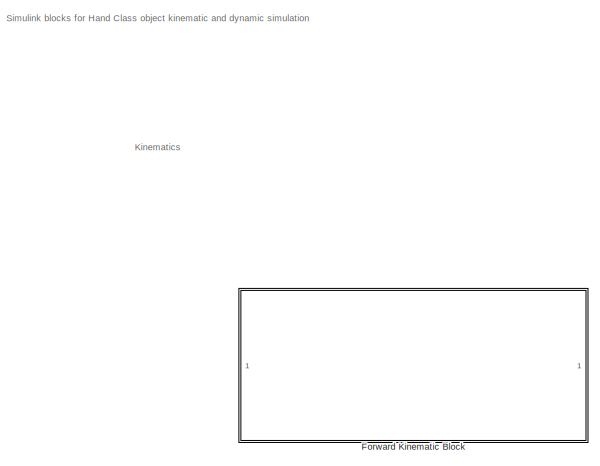
[diagram: root canvas - part 1/2, middle left region]
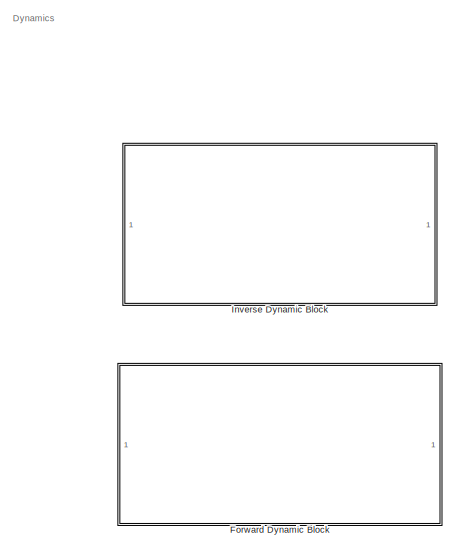
[diagram: root canvas - part 2/2, right side, full height]
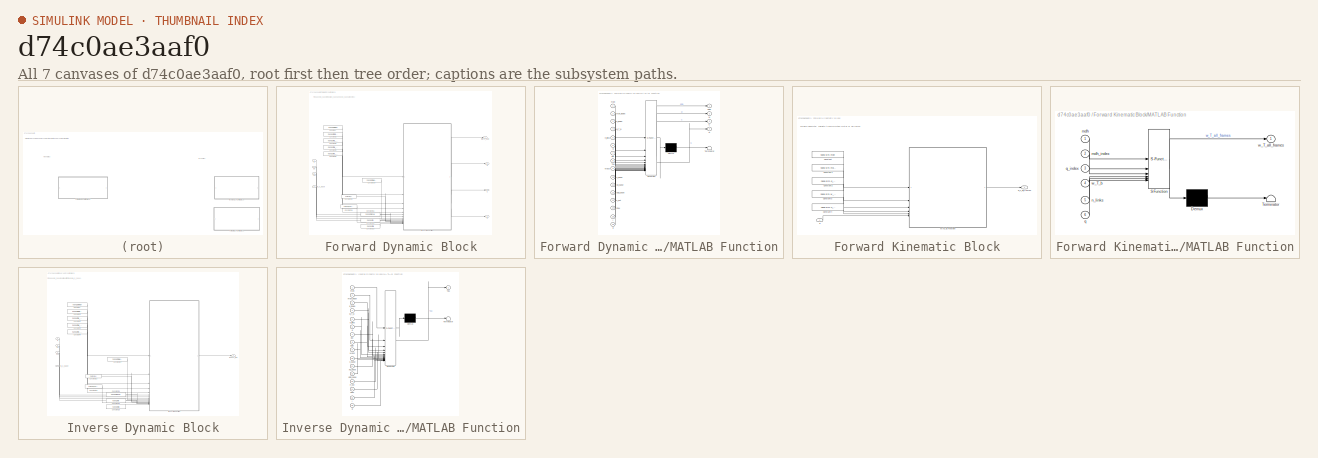
[diagram: thumbnail index - all 7 canvases of the model, root first then tree order]
MODEL slx_d74c0ae3aaf0
KIND library
CONFIG AbsTol = auto
CONFIG EnableMultiTasking = off
CONFIG FixedStep = auto
CONFIG MaxStep = auto
CONFIG MinStep = auto
CONFIG RelTol = 1e-3
CONFIG SampleTimeConstraint = Unconstrained
CONFIG SolverName = VariableStepAuto
CONFIG StartTime = 0.0
CONFIG StopTime = 10.0
BLOCK [SubSystem] Forward Dynamic Block
BLOCK [Outport] Forward Dynamic Block/C
  Port = 3
BLOCK [Constant] Forward Dynamic Block/Constant
  Value = hand.sim.mdh
BLOCK [Constant] Forward Dynamic Block/Constant1
  Value = hand.sim.mdh_index
BLOCK [Constant] Forward Dynamic Block/Constant10
  Value = zeros(6,1)
  VectorParams1D = off
BLOCK [Constant] Forward Dynamic Block/Constant14
  Value = hand.sim.Mass
  VectorParams1D = off
BLOCK [Constant] Forward Dynamic Block/Constant15
  Value = hand.sim.I
BLOCK [Constant] Forward Dynamic Block/Constant16
  Value = hand.sim.CoM
BLOCK [Constant] Forward Dynamic Block/Constant18
  Value = hand.sim.g
  VectorParams1D = off
BLOCK [Constant] Forward Dynamic Block/Constant19
  Value = zeros(6,hand.nf)
BLOCK [Constant] Forward Dynamic Block/Constant2
  Value = hand.sim.q_index
BLOCK [Constant] Forward Dynamic Block/Constant3
  Value = hand.sim.w_T_b
BLOCK [Constant] Forward Dynamic Block/Constant4
  Value = hand.sim.n_links
  VectorParams1D = off
BLOCK [Outport] Forward Dynamic Block/G
  Port = 4
BLOCK [Outport] Forward Dynamic Block/M
  Port = 2
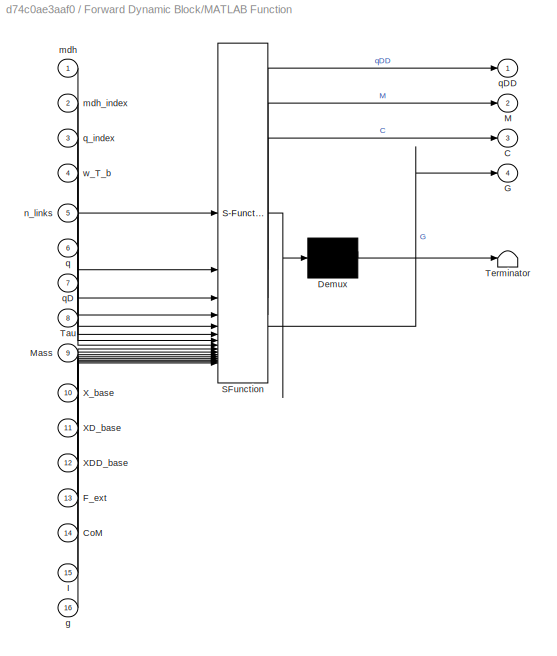
BLOCK [SubSystem] Forward Dynamic Block/MATLAB Function
  ErrorFcn = Stateflow.Translate.translate
  LibrarySourceBlock = simulink/User-Defined\nFunctions/MATLAB Function
  PermitHierarchicalResolution = ExplicitOnly
  SFBlockType = MATLAB Function
  TreatAsAtomicUnit = on
BLOCK [Demux] Forward Dynamic Block/MATLAB Function/ Demux 
  Outputs = 1
BLOCK [S-Function] Forward Dynamic Block/MATLAB Function/ SFunction 
  EnableBusSupport = on
  FunctionName = sf_sfun
  PortCounts = [16 5]
  SFcnIsStateOwnerBlock = off
  SFunctionDeploymentMode = off
  Tag = Stateflow S-Function 3
BLOCK [Terminator] Forward Dynamic Block/MATLAB Function/ Terminator 
BLOCK [Outport] Forward Dynamic Block/MATLAB Function/C
  Port = 3
BLOCK [Inport] Forward Dynamic Block/MATLAB Function/CoM
  Port = 14
BLOCK [Inport] Forward Dynamic Block/MATLAB Function/F_ext
  Port = 13
BLOCK [Outport] Forward Dynamic Block/MATLAB Function/G
  Port = 4
BLOCK [Inport] Forward Dynamic Block/MATLAB Function/I
  Port = 15
BLOCK [Outport] Forward Dynamic Block/MATLAB Function/M
  Port = 2
BLOCK [Inport] Forward Dynamic Block/MATLAB Function/Mass
  Port = 9
BLOCK [Inport] Forward Dynamic Block/MATLAB Function/Tau
  Port = 8
BLOCK [Inport] Forward Dynamic Block/MATLAB Function/XDD_base
  Port = 12
BLOCK [Inport] Forward Dynamic Block/MATLAB Function/XD_base
  Port = 11
BLOCK [Inport] Forward Dynamic Block/MATLAB Function/X_base
  Port = 10
BLOCK [Inport] Forward Dynamic Block/MATLAB Function/g
  Port = 16
BLOCK [Inport] Forward Dynamic Block/MATLAB Function/mdh
BLOCK [Inport] Forward Dynamic Block/MATLAB Function/mdh_index
  Port = 2
BLOCK [Inport] Forward Dynamic Block/MATLAB Function/n_links
  Port = 5
BLOCK [Inport] Forward Dynamic Block/MATLAB Function/q
  Port = 6
BLOCK [Inport] Forward Dynamic Block/MATLAB Function/qD
  Port = 7
BLOCK [Outport] Forward Dynamic Block/MATLAB Function/qDD
BLOCK [Inport] Forward Dynamic Block/MATLAB Function/q_index
  Port = 3
BLOCK [Inport] Forward Dynamic Block/MATLAB Function/w_T_b
  Port = 4
BLOCK [Inport] Forward Dynamic Block/Tau
  Port = 3
BLOCK [Outport] Forward Dynamic Block/fordyn_qdd
BLOCK [Inport] Forward Dynamic Block/q
BLOCK [Inport] Forward Dynamic Block/qd
  Port = 2
BLOCK [Inport] Forward Dynamic Block/w_x_base
  Port = 4
BLOCK [SubSystem] Forward Kinematic Block
BLOCK [Constant] Forward Kinematic Block/Constant
  Value = hand.sim.mdh
BLOCK [Constant] Forward Kinematic Block/Constant1
  Value = hand.sim.mdh_index
BLOCK [Constant] Forward Kinematic Block/Constant2
  Value = hand.sim.q_index
BLOCK [Constant] Forward Kinematic Block/Constant3
  Value = hand.sim.w_T_b
BLOCK [Constant] Forward Kinematic Block/Constant4
  Value = hand.sim.n_links
  VectorParams1D = off
BLOCK [SubSystem] Forward Kinematic Block/MATLAB Function
  ErrorFcn = Stateflow.Translate.translate
  LibrarySourceBlock = simulink/User-Defined\nFunctions/MATLAB Function
  PermitHierarchicalResolution = ExplicitOnly
  SFBlockType = MATLAB Function
  TreatAsAtomicUnit = on
BLOCK [Demux] Forward Kinematic Block/MATLAB Function/ Demux 
  Outputs = 1
BLOCK [S-Function] Forward Kinematic Block/MATLAB Function/ SFunction 
  EnableBusSupport = off
  FunctionName = sf_sfun
  PortCounts = [6 2]
  SFcnIsStateOwnerBlock = off
  SFunctionDeploymentMode = off
  Tag = Stateflow S-Function 1
BLOCK [Terminator] Forward Kinematic Block/MATLAB Function/ Terminator 
BLOCK [Inport] Forward Kinematic Block/MATLAB Function/mdh
BLOCK [Inport] Forward Kinematic Block/MATLAB Function/mdh_index
  Port = 2
BLOCK [Inport] Forward Kinematic Block/MATLAB Function/n_links
  Port = 5
BLOCK [Inport] Forward Kinematic Block/MATLAB Function/q
  Port = 6
BLOCK [Inport] Forward Kinematic Block/MATLAB Function/q_index
  Port = 3
BLOCK [Outport] Forward Kinematic Block/MATLAB Function/w_T_all_frames
BLOCK [Inport] Forward Kinematic Block/MATLAB Function/w_T_b
  Port = 4
BLOCK [Inport] Forward Kinematic Block/q
BLOCK [Outport] Forward Kinematic Block/w_T_all_frames
BLOCK [SubSystem] Inverse Dynamic Block
BLOCK [Constant] Inverse Dynamic Block/Constant
  Value = hand.sim.mdh
BLOCK [Constant] Inverse Dynamic Block/Constant1
  Value = hand.sim.mdh_index
BLOCK [Constant] Inverse Dynamic Block/Constant10
  Value = zeros(6,1)
  VectorParams1D = off
BLOCK [Constant] Inverse Dynamic Block/Constant14
  Value = hand.sim.Mass
  VectorParams1D = off
BLOCK [Constant] Inverse Dynamic Block/Constant15
  Value = hand.sim.I
BLOCK [Constant] Inverse Dynamic Block/Constant16
  Value = hand.sim.CoM
BLOCK [Constant] Inverse Dynamic Block/Constant18
  Value = hand.sim.g
  VectorParams1D = off
BLOCK [Constant] Inverse Dynamic Block/Constant19
  Value = zeros(6,hand.nf)
BLOCK [Constant] Inverse Dynamic Block/Constant2
  Value = hand.sim.q_index
BLOCK [Constant] Inverse Dynamic Block/Constant3
  Value = hand.sim.w_T_b
BLOCK [Constant] Inverse Dynamic Block/Constant4
  Value = hand.sim.n_links
  VectorParams1D = off
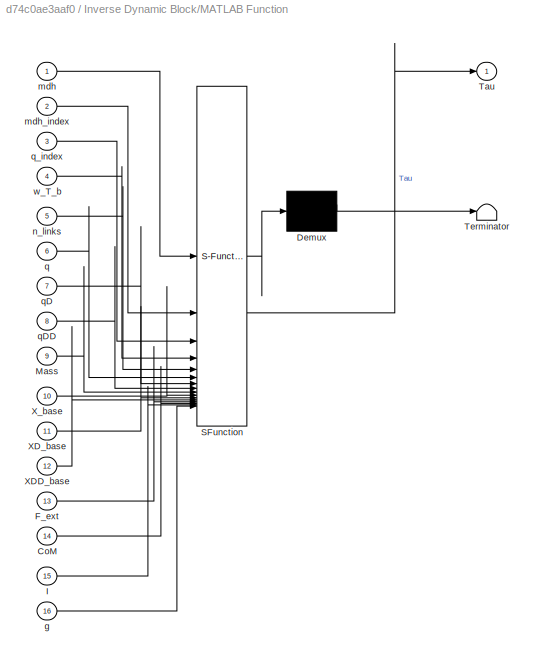
BLOCK [SubSystem] Inverse Dynamic Block/MATLAB Function
  ErrorFcn = Stateflow.Translate.translate
  LibrarySourceBlock = simulink/User-Defined\nFunctions/MATLAB Function
  PermitHierarchicalResolution = ExplicitOnly
  SFBlockType = MATLAB Function
  TreatAsAtomicUnit = on
BLOCK [Demux] Inverse Dynamic Block/MATLAB Function/ Demux 
  Outputs = 1
BLOCK [S-Function] Inverse Dynamic Block/MATLAB Function/ SFunction 
  EnableBusSupport = on
  FunctionName = sf_sfun
  PortCounts = [16 2]
  SFcnIsStateOwnerBlock = off
  SFunctionDeploymentMode = off
  Tag = Stateflow S-Function 2
BLOCK [Terminator] Inverse Dynamic Block/MATLAB Function/ Terminator 
BLOCK [Inport] Inverse Dynamic Block/MATLAB Function/CoM
  Port = 14
BLOCK [Inport] Inverse Dynamic Block/MATLAB Function/F_ext
  Port = 13
BLOCK [Inport] Inverse Dynamic Block/MATLAB Function/I
  Port = 15
BLOCK [Inport] Inverse Dynamic Block/MATLAB Function/Mass
  Port = 9
BLOCK [Outport] Inverse Dynamic Block/MATLAB Function/Tau
BLOCK [Inport] Inverse Dynamic Block/MATLAB Function/XDD_base
  Port = 12
BLOCK [Inport] Inverse Dynamic Block/MATLAB Function/XD_base
  Port = 11
BLOCK [Inport] Inverse Dynamic Block/MATLAB Function/X_base
  Port = 10
BLOCK [Inport] Inverse Dynamic Block/MATLAB Function/g
  Port = 16
BLOCK [Inport] Inverse Dynamic Block/MATLAB Function/mdh
BLOCK [Inport] Inverse Dynamic Block/MATLAB Function/mdh_index
  Port = 2
BLOCK [Inport] Inverse Dynamic Block/MATLAB Function/n_links
  Port = 5
BLOCK [Inport] Inverse Dynamic Block/MATLAB Function/q
  Port = 6
BLOCK [Inport] Inverse Dynamic Block/MATLAB Function/qD
  Port = 7
BLOCK [Inport] Inverse Dynamic Block/MATLAB Function/qDD
  Port = 8
BLOCK [Inport] Inverse Dynamic Block/MATLAB Function/q_index
  Port = 3
BLOCK [Inport] Inverse Dynamic Block/MATLAB Function/w_T_b
  Port = 4
BLOCK [Outport] Inverse Dynamic Block/invdyn_tau
BLOCK [Inport] Inverse Dynamic Block/q
BLOCK [Inport] Inverse Dynamic Block/qd
  Port = 2
BLOCK [Inport] Inverse Dynamic Block/qdd
  Port = 3
BLOCK [Inport] Inverse Dynamic Block/w_x_base
  Port = 4
ANNOTATION (root): Simulink blocks for Hand Class object kinematic and dynamic simulation
ANNOTATION (root): Dynamics
ANNOTATION (root): Kinematics
ANNOTATION Forward Dynamic Block: Fix based ( X_base is input, xd_base and xdd_base are zeros)
ANNOTATION Forward Kinematic Block: Forward kinematic: calculate transformation matrix of all frames
ANNOTATION Inverse Dynamic Block: Fix based ( X_base is derived from hand,w_p_base)
NET Forward Dynamic Block/Constant10:1 -> Forward Dynamic Block/MATLAB Function:11, Forward Dynamic Block/MATLAB Function:12
LINE Forward Dynamic Block/Constant14:1 -> Forward Dynamic Block/MATLAB Function:9
LINE Forward Dynamic Block/Constant15:1 -> Forward Dynamic Block/MATLAB Function:15
LINE Forward Dynamic Block/Constant16:1 -> Forward Dynamic Block/MATLAB Function:14
LINE Forward Dynamic Block/Constant18:1 -> Forward Dynamic Block/MATLAB Function:16
LINE Forward Dynamic Block/Constant19:1 -> Forward Dynamic Block/MATLAB Function:13
LINE Forward Dynamic Block/Constant1:1 -> Forward Dynamic Block/MATLAB Function:2
LINE Forward Dynamic Block/Constant2:1 -> Forward Dynamic Block/MATLAB Function:3
LINE Forward Dynamic Block/Constant3:1 -> Forward Dynamic Block/MATLAB Function:4
LINE Forward Dynamic Block/Constant4:1 -> Forward Dynamic Block/MATLAB Function:5
LINE Forward Dynamic Block/Constant:1 -> Forward Dynamic Block/MATLAB Function:1
LINE Forward Dynamic Block/MATLAB Function:1 -> Forward Dynamic Block/fordyn_qdd:1
LINE Forward Dynamic Block/MATLAB Function:2 -> Forward Dynamic Block/M:1
LINE Forward Dynamic Block/MATLAB Function:3 -> Forward Dynamic Block/C:1
LINE Forward Dynamic Block/MATLAB Function:4 -> Forward Dynamic Block/G:1
LINE Forward Dynamic Block/Tau:1 -> Forward Dynamic Block/MATLAB Function:8
LINE Forward Dynamic Block/q:1 -> Forward Dynamic Block/MATLAB Function:6
LINE Forward Dynamic Block/qd:1 -> Forward Dynamic Block/MATLAB Function:7
LINE Forward Dynamic Block/w_x_base:1 -> Forward Dynamic Block/MATLAB Function:10
LINE Forward Kinematic Block/Constant1:1 -> Forward Kinematic Block/MATLAB Function:2
LINE Forward Kinematic Block/Constant2:1 -> Forward Kinematic Block/MATLAB Function:3
LINE Forward Kinematic Block/Constant3:1 -> Forward Kinematic Block/MATLAB Function:4
LINE Forward Kinematic Block/Constant4:1 -> Forward Kinematic Block/MATLAB Function:5
LINE Forward Kinematic Block/Constant:1 -> Forward Kinematic Block/MATLAB Function:1
LINE Forward Kinematic Block/MATLAB Function:1 -> Forward Kinematic Block/w_T_all_frames:1
LINE Forward Kinematic Block/q:1 -> Forward Kinematic Block/MATLAB Function:6
NET Inverse Dynamic Block/Constant10:1 -> Inverse Dynamic Block/MATLAB Function:11, Inverse Dynamic Block/MATLAB Function:12
LINE Inverse Dynamic Block/Constant14:1 -> Inverse Dynamic Block/MATLAB Function:9
LINE Inverse Dynamic Block/Constant15:1 -> Inverse Dynamic Block/MATLAB Function:15
LINE Inverse Dynamic Block/Constant16:1 -> Inverse Dynamic Block/MATLAB Function:14
LINE Inverse Dynamic Block/Constant18:1 -> Inverse Dynamic Block/MATLAB Function:16
LINE Inverse Dynamic Block/Constant19:1 -> Inverse Dynamic Block/MATLAB Function:13
LINE Inverse Dynamic Block/Constant1:1 -> Inverse Dynamic Block/MATLAB Function:2
LINE Inverse Dynamic Block/Constant2:1 -> Inverse Dynamic Block/MATLAB Function:3
LINE Inverse Dynamic Block/Constant3:1 -> Inverse Dynamic Block/MATLAB Function:4
LINE Inverse Dynamic Block/Constant4:1 -> Inverse Dynamic Block/MATLAB Function:5
LINE Inverse Dynamic Block/Constant:1 -> Inverse Dynamic Block/MATLAB Function:1
LINE Inverse Dynamic Block/MATLAB Function:1 -> Inverse Dynamic Block/invdyn_tau:1
LINE Inverse Dynamic Block/q:1 -> Inverse Dynamic Block/MATLAB Function:6
LINE Inverse Dynamic Block/qd:1 -> Inverse Dynamic Block/MATLAB Function:7
LINE Inverse Dynamic Block/qdd:1 -> Inverse Dynamic Block/MATLAB Function:8
LINE Inverse Dynamic Block/w_x_base:1 -> Inverse Dynamic Block/MATLAB Function:10
note: NET lines group one-source signal fan-out (src -> all destinations, sorted); 1:1 wires keep LINE
CHART Forward Kinematic Block/MATLAB Function states=1 transitions=1
  STATE_LABEL 'eML_blk_kernel()'
  STATE_LABEL 'SCRIPT:\nfunction w_T_all_frames = fcn(mdh, mdh_index, q_index, w_T_b, n_links, q)\n\n% calculate transformation matrix of frames\nw_T_all_frames = sim_w_T_all_frames_from_q(mdh,mdh_index,q_index,w_T_b,n_links,q);\n'
CHART Inverse Dynamic Block/MATLAB Function states=1 transitions=1
  STATE_LABEL 'eML_blk_kernel()'
  STATE_LABEL 'SCRIPT:\nfunction Tau = fcn(mdh, mdh_index, q_index, w_T_b, n_links, q, qD, qDD, Mass, X_base, XD_base,XDD_base, F_ext, CoM, I, g)\n\n% calculate transformation matrix of frames\nw_T_all_frames = sim_w_T_all_frames_from_q(mdh,mdh_index,q_index,w_T_b,n_links,q);\n% calculate inverse dynamics\nTau = invdyn_ne_T(w_T_all_frames,qD,qDD, n_links, q_index, Mass, X_base, XD_base,XDD_base, F_ext, CoM, I, g);'
CHART Forward Dynamic Block/MATLAB Function states=1 transitions=1
  STATE_LABEL 'eML_blk_kernel()'
  STATE_LABEL 'SCRIPT:\nfunction [qDD,M,C,G] = fcn(mdh, mdh_index, q_index, w_T_b, n_links, q, qD, Tau, Mass, X_base, XD_base,XDD_base, F_ext, CoM, I, g)\n\n% calculate transformation matrix of frames\nw_T_all_frames = sim_w_T_all_frames_from_q(mdh,mdh_index,q_index,w_T_b,n_links,q);\n% calculate forward dynamics\n[qDD,M,C,G] = fordyn_ne_T(w_T_all_frames,qD,Tau, n_links, q_index, Mass, X_base, XD_base,XDD_base, F_ext,...<+12ch>'
CHART  states=0 transitions=0
CHART  states=0 transitions=0
CHART  states=0 transitions=0
